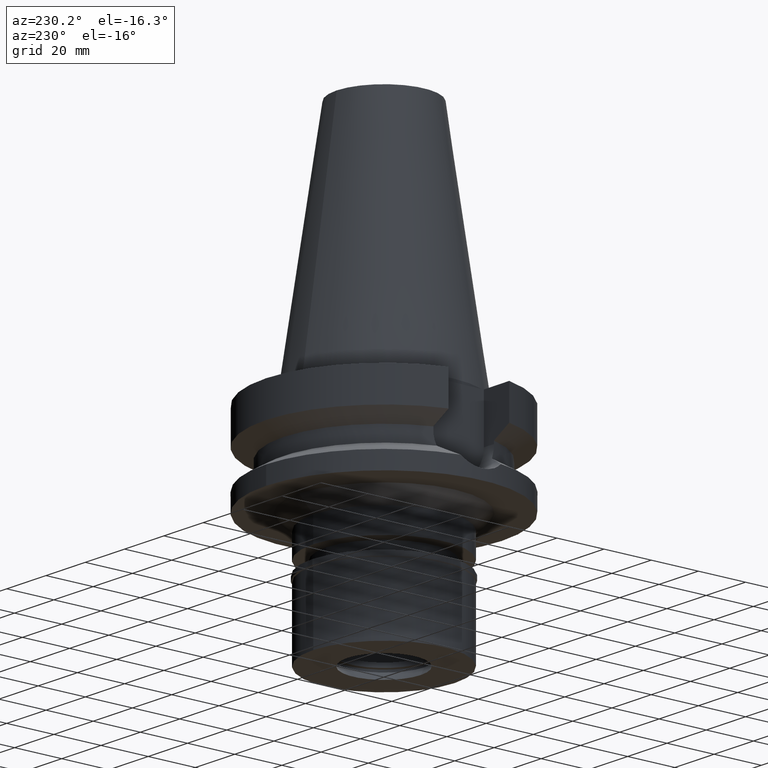
[diagram: clean part render]
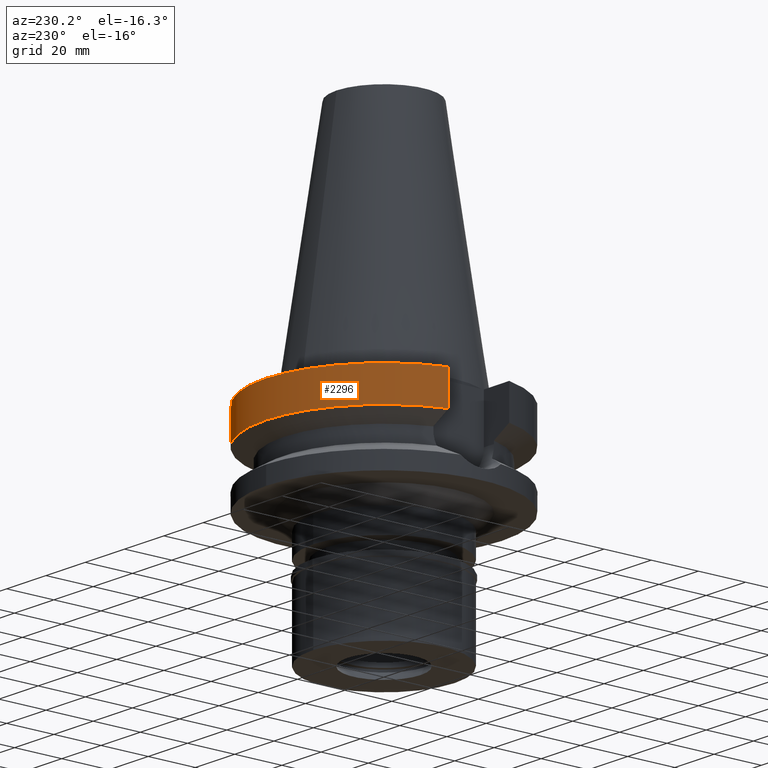
[diagram: same view with one face highlighted and labeled with its STEP entity id]
A machine part, auxiliary view. The second image highlights one B-rep face of the part: STEP entity #2296.
In plain terms, the highlighted cylindrical surface (partial cylindrical patch) has radius 50 mm, axis along (0, 0, -1).
Its self-contained STEP definition (entity closure, byte-faithful):
#132 = ORIENTED_EDGE ( 'NONE', *, *, #2914, .F. ) ;
#142 = VECTOR ( 'NONE', #1031, 999.9999999999998863 ) ;
#188 = AXIS2_PLACEMENT_3D ( 'NONE', #1898, #2567, #1399 ) ;
#515 = ORIENTED_EDGE ( 'NONE', *, *, #1648, .T. ) ;
#530 = AXIS2_PLACEMENT_3D ( 'NONE', #2194, #1437, #2874 ) ;
#638 = DIRECTION ( 'NONE',  ( 7.181768936523719067E-08, 2.700598788810894472E-07, -0.9999999999999609201 ) ) ;
#654 = EDGE_CURVE ( 'NONE', #2939, #759, #812, .T. ) ;
#709 = EDGE_LOOP ( 'NONE', ( #132, #2022, #2107, #515 ) ) ;
#756 = FACE_OUTER_BOUND ( 'NONE', #709, .T. ) ;
#759 = VERTEX_POINT ( 'NONE', #2476 ) ;
#812 = CIRCLE ( 'NONE', #188, 50.00000000000000000 ) ;
#1020 = AXIS2_PLACEMENT_3D ( 'NONE', #1981, #1028, #1972 ) ;
#1028 = DIRECTION ( 'NONE',  ( 0.0000000000000000000, 0.0000000000000000000, -1.000000000000000000 ) ) ;
#1031 = DIRECTION ( 'NONE',  ( 7.192515409611718939E-08, -2.704639831443894683E-07, 0.9999999999999609201 ) ) ;
#1111 = CARTESIAN_POINT ( 'NONE',  ( -48.32057015392000210, 12.84999999999999964, -1.500000000000000000 ) ) ;
#1263 = CIRCLE ( 'NONE', #530, 50.00000000000000000 ) ;
#1399 = DIRECTION ( 'NONE',  ( 0.0000000000000000000, 1.000000000000000000, 0.0000000000000000000 ) ) ;
#1437 = DIRECTION ( 'NONE',  ( 0.0000000000000000000, 0.0000000000000000000, 1.000000000000000000 ) ) ;
#1601 = CARTESIAN_POINT ( 'NONE',  ( -48.32057015392000210, 12.84999999999999964, -1.500000000000000000 ) ) ;
#1629 = VERTEX_POINT ( 'NONE', #2402 ) ;
#1648 = EDGE_CURVE ( 'NONE', #2442, #1629, #1263, .T. ) ;
#1732 = EDGE_CURVE ( 'NONE', #2442, #759, #2211, .T. ) ;
#1740 = CYLINDRICAL_SURFACE ( 'NONE', #1020, 50.00000000000000000 ) ;
#1817 = VECTOR ( 'NONE', #638, 1000.000000000000114 ) ;
#1898 = CARTESIAN_POINT ( 'NONE',  ( 0.0000000000000000000, 2.581739149621999642E-14, -1.500000000000000000 ) ) ;
#1972 = DIRECTION ( 'NONE',  ( 0.0000000000000000000, -1.000000000000000000, 0.0000000000000000000 ) ) ;
#1981 = CARTESIAN_POINT ( 'NONE',  ( 0.0000000000000000000, 2.581739149621999642E-14, 110.8149999999999977 ) ) ;
#2022 = ORIENTED_EDGE ( 'NONE', *, *, #654, .T. ) ;
#2107 = ORIENTED_EDGE ( 'NONE', *, *, #1732, .F. ) ;
#2194 = CARTESIAN_POINT ( 'NONE',  ( 0.0000000000000000000, 1.006319759053999930E-14, -15.66269223573000069 ) ) ;
#2211 = LINE ( 'NONE', #2501, #142 ) ;
#2296 = ADVANCED_FACE ( 'NONE', ( #756 ), #1740, .T. ) ;
#2402 = CARTESIAN_POINT ( 'NONE',  ( -48.32056913679000587, 12.85000382477000080, -15.66265797382999914 ) ) ;
#2442 = VERTEX_POINT ( 'NONE', #2467 ) ;
#2467 = CARTESIAN_POINT ( 'NONE',  ( 48.32056913527000575, 12.85000383048999950, -15.66265792256000111 ) ) ;
#2476 = CARTESIAN_POINT ( 'NONE',  ( 48.32057015392000210, 12.84999999999999964, -1.500000000000000000 ) ) ;
#2501 = CARTESIAN_POINT ( 'NONE',  ( 48.32056913527000575, 12.85000383048999950, -15.66265792256000111 ) ) ;
#2567 = DIRECTION ( 'NONE',  ( 0.0000000000000000000, 0.0000000000000000000, -1.000000000000000000 ) ) ;
#2722 = LINE ( 'NONE', #1601, #1817 ) ;
#2874 = DIRECTION ( 'NONE',  ( 0.0000000000000000000, 1.000000000000000000, 0.0000000000000000000 ) ) ;
#2914 = EDGE_CURVE ( 'NONE', #2939, #1629, #2722, .T. ) ;
#2939 = VERTEX_POINT ( 'NONE', #1111 ) ;